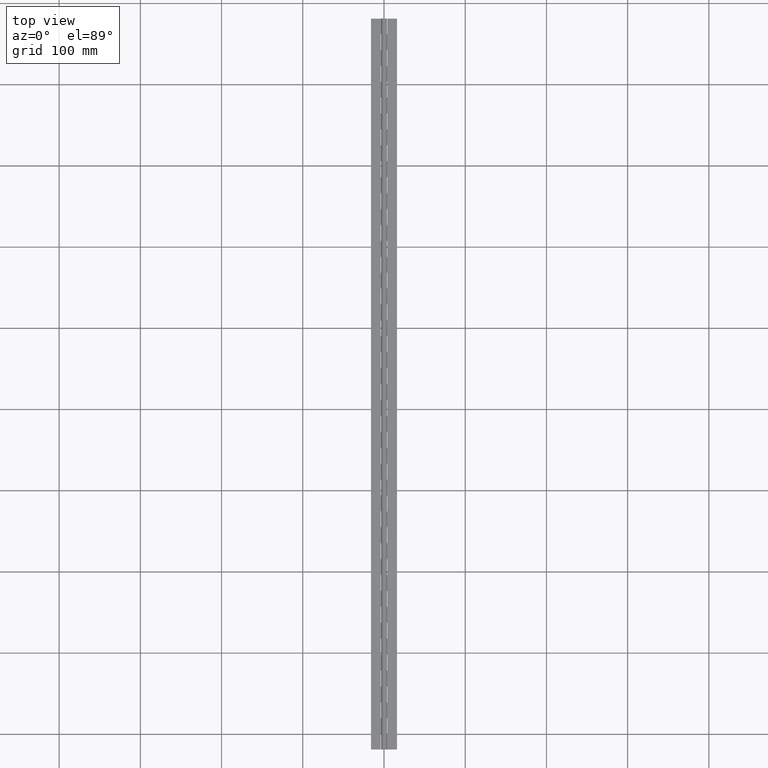
[diagram: clean part render]
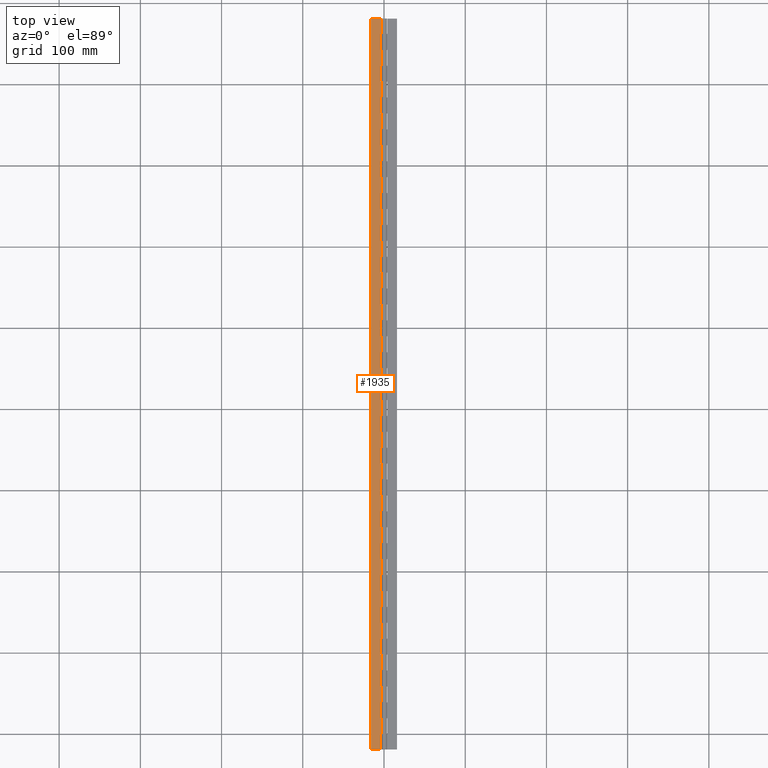
[diagram: same view with one face highlighted and labeled with its STEP entity id]
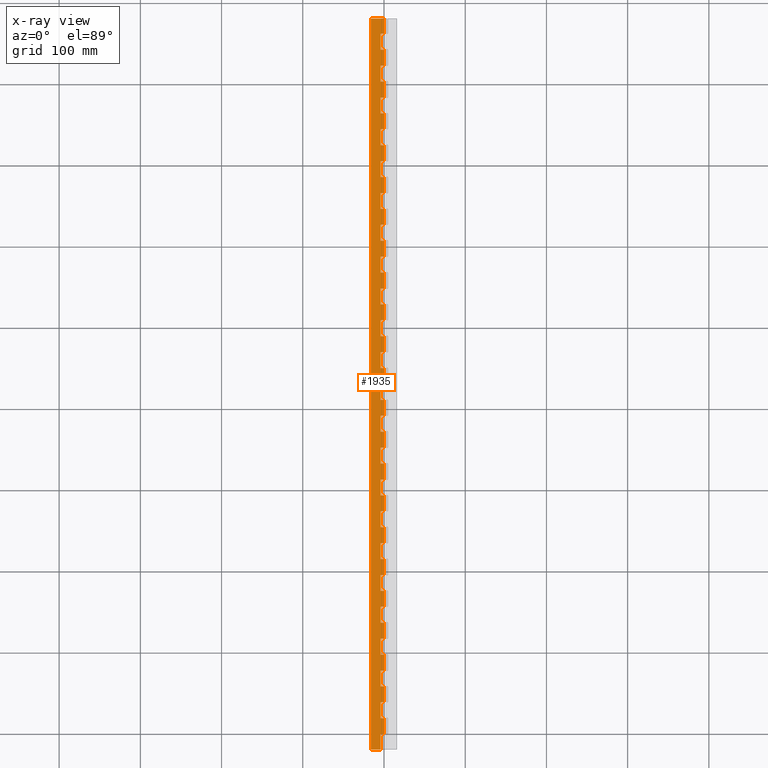
[diagram: x-ray of the same camera — body ghosted, the highlighted face saturated]
A machine part, top view. The second image highlights one B-rep face of the part: STEP entity #1935.
The next image is the same camera in x-ray: the body ghosted, the highlighted face saturated — about 0% of this face is hidden behind the body in this view.
In plain terms, the highlighted planar face has unit normal (-0, 0, -1).
Its self-contained STEP definition (entity closure, byte-faithful):
#7 = EDGE_CURVE ( 'NONE', #6120, #713, #5329, .T. ) ;
#18 = VERTEX_POINT ( 'NONE', #6525 ) ;
#31 = ORIENTED_EDGE ( 'NONE', *, *, #5007, .T. ) ;
#49 = CARTESIAN_POINT ( 'NONE',  ( 2.143125705451388300E-016, 764.4000000000000900, -1.750000000000002400 ) ) ;
#51 = CARTESIAN_POINT ( 'NONE',  ( -3.999999824594461900, 666.4000000000000900, -1.750000000000002200 ) ) ;
#61 = CARTESIAN_POINT ( 'NONE',  ( 2.143125705451388300E-016, 568.3999999999999800, -1.750000000000002400 ) ) ;
#77 = DIRECTION ( 'NONE',  ( -1.327594496921025700E-016, 1.000000000000000000, 1.619303460211448100E-032 ) ) ;
#88 = PLANE ( 'NONE',  #2541 ) ;
#101 = VECTOR ( 'NONE', #1950, 1000.000000000000000 ) ;
#131 = VECTOR ( 'NONE', #4886, 1000.000000000000000 ) ;
#151 = ORIENTED_EDGE ( 'NONE', *, *, #9002, .T. ) ;
#157 = ORIENTED_EDGE ( 'NONE', *, *, #5306, .T. ) ;
#160 = EDGE_CURVE ( 'NONE', #6957, #18, #6175, .T. ) ;
#168 = CARTESIAN_POINT ( 'NONE',  ( -3.999999824594461900, 784.0000000000001100, -1.750000000000002200 ) ) ;
#171 = ORIENTED_EDGE ( 'NONE', *, *, #3085, .T. ) ;
#176 = ORIENTED_EDGE ( 'NONE', *, *, #365, .T. ) ;
#179 = ORIENTED_EDGE ( 'NONE', *, *, #2925, .F. ) ;
#217 = CARTESIAN_POINT ( 'NONE',  ( -15.99999982459446300, -18.80000000000000100, -1.750000000000000400 ) ) ;
#224 = VECTOR ( 'NONE', #3035, 1000.000000000000000 ) ;
#229 = EDGE_CURVE ( 'NONE', #7678, #3100, #7892, .T. ) ;
#230 = DIRECTION ( 'NONE',  ( -1.000000000000000000, 0.0000000000000000000, 1.219727457417876900E-016 ) ) ;
#267 = ORIENTED_EDGE ( 'NONE', *, *, #4996, .T. ) ;
#273 = LINE ( 'NONE', #3621, #6073 ) ;
#274 = LINE ( 'NONE', #2730, #6074 ) ;
#277 = EDGE_CURVE ( 'NONE', #5468, #1679, #8947, .T. ) ;
#294 = ORIENTED_EDGE ( 'NONE', *, *, #2354, .T. ) ;
#300 = EDGE_CURVE ( 'NONE', #1960, #5019, #8698, .T. ) ;
#328 = DIRECTION ( 'NONE',  ( -1.327594496921025700E-016, 1.000000000000000000, 1.619303460211448100E-032 ) ) ;
#331 = DIRECTION ( 'NONE',  ( -0.0000000000000000000, -1.000000000000000000, -0.0000000000000000000 ) ) ;
#360 = CARTESIAN_POINT ( 'NONE',  ( 2.143125705451388300E-016, 862.4000000000002000, -1.750000000000002400 ) ) ;
#361 = VERTEX_POINT ( 'NONE', #6069 ) ;
#365 = EDGE_CURVE ( 'NONE', #7749, #7124, #6280, .T. ) ;
#384 = VERTEX_POINT ( 'NONE', #759 ) ;
#402 = ORIENTED_EDGE ( 'NONE', *, *, #3460, .F. ) ;
#403 = EDGE_CURVE ( 'NONE', #7936, #2670, #2500, .T. ) ;
#406 = EDGE_CURVE ( 'NONE', #361, #9312, #945, .T. ) ;
#414 = EDGE_CURVE ( 'NONE', #7787, #4867, #2016, .T. ) ;
#419 = ORIENTED_EDGE ( 'NONE', *, *, #4612, .F. ) ;
#421 = CARTESIAN_POINT ( 'NONE',  ( 2.143132568272414800E-016, 862.3999999999999800, -1.750000546904256100 ) ) ;
#429 = CARTESIAN_POINT ( 'NONE',  ( -3.999999824594571200, 862.3999999999999800, -1.750000000000002000 ) ) ;
#434 = EDGE_CURVE ( 'NONE', #6107, #5777, #1774, .T. ) ;
#436 = LINE ( 'NONE', #1856, #6251 ) ;
#475 = VECTOR ( 'NONE', #6023, 1000.000000000000000 ) ;
#481 = CARTESIAN_POINT ( 'NONE',  ( -3.999999824594461900, 744.8000000000001800, -1.750000000000002200 ) ) ;
#493 = ORIENTED_EDGE ( 'NONE', *, *, #1972, .T. ) ;
#501 = LINE ( 'NONE', #429, #8027 ) ;
#527 = CARTESIAN_POINT ( 'NONE',  ( -3.999999824594461900, 627.2000000000000500, -1.750000000000002200 ) ) ;
#531 = DIRECTION ( 'NONE',  ( 1.000000000000000000, 0.0000000000000000000, -1.219727457417876900E-016 ) ) ;
#534 = VERTEX_POINT ( 'NONE', #1486 ) ;
#573 = CARTESIAN_POINT ( 'NONE',  ( -3.999999824594461900, 117.6000000000000100, -1.750000000000002200 ) ) ;
#594 = VERTEX_POINT ( 'NONE', #4600 ) ;
#611 = DIRECTION ( 'NONE',  ( -1.000000000000000000, 0.0000000000000000000, 1.219727457417876900E-016 ) ) ;
#621 = ORIENTED_EDGE ( 'NONE', *, *, #6188, .T. ) ;
#633 = EDGE_CURVE ( 'NONE', #384, #8635, #7878, .T. ) ;
#634 = VERTEX_POINT ( 'NONE', #6658 ) ;
#653 = CARTESIAN_POINT ( 'NONE',  ( 2.143125705451388300E-016, 215.6000000000000200, -1.750000000000002400 ) ) ;
#655 = VERTEX_POINT ( 'NONE', #9660 ) ;
#671 = VERTEX_POINT ( 'NONE', #8178 ) ;
#688 = EDGE_CURVE ( 'NONE', #1576, #9653, #1315, .T. ) ;
#695 = ORIENTED_EDGE ( 'NONE', *, *, #3256, .T. ) ;
#713 = VERTEX_POINT ( 'NONE', #4407 ) ;
#717 = ORIENTED_EDGE ( 'NONE', *, *, #3113, .F. ) ;
#748 = CARTESIAN_POINT ( 'NONE',  ( 2.143132568272414800E-016, 862.3999999999999800, -1.750000546904256100 ) ) ;
#751 = CARTESIAN_POINT ( 'NONE',  ( -3.999999824594459200, 725.2000000000000500, -1.750000000000002200 ) ) ;
#759 = CARTESIAN_POINT ( 'NONE',  ( -3.999999824594461900, 862.4000000000002000, -1.750000000000002200 ) ) ;
#766 = VERTEX_POINT ( 'NONE', #573 ) ;
#770 = CARTESIAN_POINT ( 'NONE',  ( 0.0000000000000000000, 705.6000000000001400, -1.750000000000002400 ) ) ;
#784 = CARTESIAN_POINT ( 'NONE',  ( -3.999999824594524500, 862.3999999999999800, -1.750000000000002000 ) ) ;
#818 = DIRECTION ( 'NONE',  ( -1.000000000000000000, 0.0000000000000000000, 1.219727457417876900E-016 ) ) ;
#824 = VERTEX_POINT ( 'NONE', #1241 ) ;
#846 = DIRECTION ( 'NONE',  ( 1.000000000000000000, 0.0000000000000000000, -1.219727457417876900E-016 ) ) ;
#866 = VERTEX_POINT ( 'NONE', #1971 ) ;
#881 = CARTESIAN_POINT ( 'NONE',  ( 2.143132568272414800E-016, 862.3999999999999800, -1.750000546904256100 ) ) ;
#885 = DIRECTION ( 'NONE',  ( -1.000000000000000000, 0.0000000000000000000, 1.219727457417876900E-016 ) ) ;
#890 = DIRECTION ( 'NONE',  ( -0.0000000000000000000, -1.000000000000000000, -0.0000000000000000000 ) ) ;
#898 = ORIENTED_EDGE ( 'NONE', *, *, #1256, .T. ) ;
#905 = CARTESIAN_POINT ( 'NONE',  ( 2.143132568272414800E-016, 862.3999999999999800, -1.750000546904256100 ) ) ;
#913 = VERTEX_POINT ( 'NONE', #9414 ) ;
#920 = CARTESIAN_POINT ( 'NONE',  ( -3.999999824594459200, 98.00000000000001400, -1.750000000000002200 ) ) ;
#922 = LINE ( 'NONE', #2974, #2700 ) ;
#929 = VECTOR ( 'NONE', #7711, 1000.000000000000000 ) ;
#945 = LINE ( 'NONE', #7640, #5795 ) ;
#964 = VECTOR ( 'NONE', #846, 1000.000000000000000 ) ;
#1014 = DIRECTION ( 'NONE',  ( -1.000000000000000000, 0.0000000000000000000, 1.219727457417876900E-016 ) ) ;
#1031 = CARTESIAN_POINT ( 'NONE',  ( -3.999999824594461900, 392.0000000000000600, -1.750000000000002200 ) ) ;
#1079 = LINE ( 'NONE', #8256, #9083 ) ;
#1090 = LINE ( 'NONE', #7023, #8851 ) ;
#1096 = EDGE_CURVE ( 'NONE', #1994, #7130, #7545, .T. ) ;
#1110 = VERTEX_POINT ( 'NONE', #5521 ) ;
#1141 = DIRECTION ( 'NONE',  ( -1.000000000000000000, 0.0000000000000000000, 1.219727457417876900E-016 ) ) ;
#1145 = EDGE_CURVE ( 'NONE', #9208, #7109, #1544, .T. ) ;
#1192 = VERTEX_POINT ( 'NONE', #9717 ) ;
#1206 = VECTOR ( 'NONE', #5137, 1000.000000000000000 ) ;
#1209 = DIRECTION ( 'NONE',  ( -1.327594496921025700E-016, 1.000000000000000000, 1.619303460211448100E-032 ) ) ;
#1216 = VERTEX_POINT ( 'NONE', #61 ) ;
#1218 = CARTESIAN_POINT ( 'NONE',  ( 2.143125705451388300E-016, 490.0000000000000600, -1.750000000000002400 ) ) ;
#1220 = CARTESIAN_POINT ( 'NONE',  ( 2.143125705451388300E-016, 137.1999999999999900, -1.750000000000002400 ) ) ;
#1235 = DIRECTION ( 'NONE',  ( -1.000000000000000000, 0.0000000000000000000, 1.219727457417876900E-016 ) ) ;
#1241 = CARTESIAN_POINT ( 'NONE',  ( 2.143125705451388300E-016, 627.2000000000000500, -1.750000000000002400 ) ) ;
#1242 = ORIENTED_EDGE ( 'NONE', *, *, #4751, .T. ) ;
#1256 = EDGE_CURVE ( 'NONE', #3442, #671, #4138, .T. ) ;
#1261 = DIRECTION ( 'NONE',  ( 1.000000000000000000, 0.0000000000000000000, -1.219727457417876900E-016 ) ) ;
#1268 = LINE ( 'NONE', #5379, #3522 ) ;
#1269 = LINE ( 'NONE', #3017, #9025 ) ;
#1291 = VERTEX_POINT ( 'NONE', #8109 ) ;
#1295 = VECTOR ( 'NONE', #7378, 1000.000000000000000 ) ;
#1302 = ORIENTED_EDGE ( 'NONE', *, *, #2890, .T. ) ;
#1304 = VECTOR ( 'NONE', #8392, 1000.000000000000000 ) ;
#1315 = LINE ( 'NONE', #5250, #3095 ) ;
#1325 = VERTEX_POINT ( 'NONE', #2473 ) ;
#1339 = VERTEX_POINT ( 'NONE', #3244 ) ;
#1341 = LINE ( 'NONE', #3249, #9093 ) ;
#1347 = ORIENTED_EDGE ( 'NONE', *, *, #414, .T. ) ;
#1353 = EDGE_CURVE ( 'NONE', #3452, #6353, #1409, .T. ) ;
#1361 = CARTESIAN_POINT ( 'NONE',  ( 0.0000000000000000000, 333.2000000000000500, -1.750000000000002400 ) ) ;
#1376 = DIRECTION ( 'NONE',  ( 1.000000000000000000, 0.0000000000000000000, -1.219727457417876900E-016 ) ) ;
#1386 = EDGE_CURVE ( 'NONE', #1291, #8044, #6958, .T. ) ;
#1387 = LINE ( 'NONE', #4710, #7154 ) ;
#1391 = LINE ( 'NONE', #1770, #7162 ) ;
#1409 = LINE ( 'NONE', #7527, #5188 ) ;
#1416 = CARTESIAN_POINT ( 'NONE',  ( 0.0000000000000000000, 862.4000000000002000, -1.750000000000002400 ) ) ;
#1417 = VECTOR ( 'NONE', #331, 1000.000000000000000 ) ;
#1435 = ORIENTED_EDGE ( 'NONE', *, *, #1353, .T. ) ;
#1471 = ORIENTED_EDGE ( 'NONE', *, *, #6805, .T. ) ;
#1486 = CARTESIAN_POINT ( 'NONE',  ( 2.143125705451388300E-016, 705.6000000000001400, -1.750000000000002400 ) ) ;
#1492 = CARTESIAN_POINT ( 'NONE',  ( 2.143132568272414800E-016, 862.3999999999999800, -1.750000546904256100 ) ) ;
#1497 = CARTESIAN_POINT ( 'NONE',  ( -3.999999824594461900, 39.20000000000000300, -1.750000000000002200 ) ) ;
#1503 = CARTESIAN_POINT ( 'NONE',  ( 0.0000000000000000000, 431.2000000000001000, -1.750000000000002400 ) ) ;
#1524 = EDGE_CURVE ( 'NONE', #634, #18, #9278, .T. ) ;
#1529 = DIRECTION ( 'NONE',  ( 1.000000000000000000, 0.0000000000000000000, -1.219727457417876900E-016 ) ) ;
#1538 = DIRECTION ( 'NONE',  ( -1.327594496921025700E-016, 1.000000000000000000, 1.619303460211448100E-032 ) ) ;
#1544 = LINE ( 'NONE', #3073, #6609 ) ;
#1576 = VERTEX_POINT ( 'NONE', #7039 ) ;
#1591 = CARTESIAN_POINT ( 'NONE',  ( -3.999999824594459200, 646.8000000000000700, -1.750000000000002200 ) ) ;
#1658 = LINE ( 'NONE', #5415, #9168 ) ;
#1660 = CARTESIAN_POINT ( 'NONE',  ( -3.999999824594461900, 509.6000000000000800, -1.750000000000002200 ) ) ;
#1671 = LINE ( 'NONE', #1847, #1417 ) ;
#1674 = VERTEX_POINT ( 'NONE', #5517 ) ;
#1677 = VECTOR ( 'NONE', #3124, 1000.000000000000000 ) ;
#1679 = VERTEX_POINT ( 'NONE', #217 ) ;
#1682 = CARTESIAN_POINT ( 'NONE',  ( -3.999999824594459200, 490.0000000000000600, -1.750000000000002200 ) ) ;
#1700 = LINE ( 'NONE', #7949, #7458 ) ;
#1701 = LINE ( 'NONE', #4066, #3708 ) ;
#1704 = CARTESIAN_POINT ( 'NONE',  ( -3.999999824594461900, 235.2000000000000500, -1.750000000000002200 ) ) ;
#1707 = CARTESIAN_POINT ( 'NONE',  ( 0.0000000000000000000, 627.2000000000000500, -1.750000000000002400 ) ) ;
#1714 = DIRECTION ( 'NONE',  ( -0.0000000000000000000, -1.000000000000000000, -0.0000000000000000000 ) ) ;
#1770 = CARTESIAN_POINT ( 'NONE',  ( 2.143132568272414800E-016, 862.3999999999999800, -1.750000546904256100 ) ) ;
#1774 = LINE ( 'NONE', #8764, #9286 ) ;
#1788 = VERTEX_POINT ( 'NONE', #9609 ) ;
#1799 = LINE ( 'NONE', #8207, #7103 ) ;
#1808 = DIRECTION ( 'NONE',  ( -0.0000000000000000000, -1.000000000000000000, -0.0000000000000000000 ) ) ;
#1828 = EDGE_CURVE ( 'NONE', #2813, #6909, #922, .T. ) ;
#1847 = CARTESIAN_POINT ( 'NONE',  ( 2.143132568272414800E-016, 862.3999999999999800, -1.750000546904256100 ) ) ;
#1856 = CARTESIAN_POINT ( 'NONE',  ( 0.0000000000000000000, 568.3999999999999800, -1.750000000000002400 ) ) ;
#1868 = VECTOR ( 'NONE', #77, 1000.000000000000000 ) ;
#1881 = DIRECTION ( 'NONE',  ( 1.000000000000000000, 0.0000000000000000000, -1.219727457417876900E-016 ) ) ;
#1893 = VERTEX_POINT ( 'NONE', #2216 ) ;
#1905 = CARTESIAN_POINT ( 'NONE',  ( 2.143132568272414800E-016, 862.3999999999999800, -1.750000546904256100 ) ) ;
#1935 = ADVANCED_FACE ( 'NONE', ( #7757 ), #88, .F. ) ;
#1950 = DIRECTION ( 'NONE',  ( -0.0000000000000000000, -1.000000000000000000, -0.0000000000000000000 ) ) ;
#1960 = VERTEX_POINT ( 'NONE', #6942 ) ;
#1971 = CARTESIAN_POINT ( 'NONE',  ( 2.143125705451388300E-016, 666.4000000000000900, -1.750000000000002400 ) ) ;
#1972 = EDGE_CURVE ( 'NONE', #6487, #4603, #7519, .T. ) ;
#1978 = DIRECTION ( 'NONE',  ( -0.0000000000000000000, -1.000000000000000000, -0.0000000000000000000 ) ) ;
#1994 = VERTEX_POINT ( 'NONE', #3170 ) ;
#2016 = LINE ( 'NONE', #8263, #7776 ) ;
#2036 = ORIENTED_EDGE ( 'NONE', *, *, #7, .T. ) ;
#2060 = ORIENTED_EDGE ( 'NONE', *, *, #2076, .T. ) ;
#2070 = DIRECTION ( 'NONE',  ( 1.000000000000000000, 0.0000000000000000000, -1.219727457417876900E-016 ) ) ;
#2076 = EDGE_CURVE ( 'NONE', #4867, #2650, #5592, .T. ) ;
#2090 = VERTEX_POINT ( 'NONE', #8181 ) ;
#2129 = DIRECTION ( 'NONE',  ( -1.000000000000000000, 0.0000000000000000000, 1.219727457417876900E-016 ) ) ;
#2130 = EDGE_CURVE ( 'NONE', #4606, #1893, #1799, .T. ) ;
#2134 = ORIENTED_EDGE ( 'NONE', *, *, #8734, .T. ) ;
#2139 = EDGE_CURVE ( 'NONE', #7500, #3553, #1079, .T. ) ;
#2161 = CARTESIAN_POINT ( 'NONE',  ( -3.999999824594493000, 862.3999999999999800, -1.750000000000002000 ) ) ;
#2169 = ORIENTED_EDGE ( 'NONE', *, *, #4130, .T. ) ;
#2178 = CARTESIAN_POINT ( 'NONE',  ( 0.0000000000000000000, 764.4000000000000900, -1.750000000000002400 ) ) ;
#2196 = DIRECTION ( 'NONE',  ( 1.000000000000000000, 0.0000000000000000000, -1.219727457417876900E-016 ) ) ;
#2201 = VERTEX_POINT ( 'NONE', #5357 ) ;
#2216 = CARTESIAN_POINT ( 'NONE',  ( -3.999999824594461900, 352.8000000000000700, -1.750000000000002200 ) ) ;
#2217 = DIRECTION ( 'NONE',  ( -0.9999999999999994400, -0.0000000000000000000, 3.418151635014737200E-008 ) ) ;
#2262 = VERTEX_POINT ( 'NONE', #1660 ) ;
#2264 = VECTOR ( 'NONE', #8111, 1000.000000000000000 ) ;
#2282 = CARTESIAN_POINT ( 'NONE',  ( -3.999999824594540100, 862.3999999999999800, -1.750000000000002000 ) ) ;
#2313 = EDGE_CURVE ( 'NONE', #634, #9525, #5603, .T. ) ;
#2319 = DIRECTION ( 'NONE',  ( 1.000000000000000000, 0.0000000000000000000, -1.219727457417876900E-016 ) ) ;
#2327 = EDGE_CURVE ( 'NONE', #2670, #1110, #1341, .T. ) ;
#2350 = CARTESIAN_POINT ( 'NONE',  ( -3.999999824594498300, 862.3999999999999800, -1.750000000000002000 ) ) ;
#2353 = VERTEX_POINT ( 'NONE', #9260 ) ;
#2354 = EDGE_CURVE ( 'NONE', #1339, #5598, #1090, .T. ) ;
#2359 = VECTOR ( 'NONE', #7300, 1000.000000000000000 ) ;
#2379 = VECTOR ( 'NONE', #8229, 1000.000000000000000 ) ;
#2395 = CARTESIAN_POINT ( 'NONE',  ( 2.143125705451388300E-016, 607.6000000000000200, -1.750000000000002400 ) ) ;
#2419 = DIRECTION ( 'NONE',  ( -1.327594496921025700E-016, 1.000000000000000000, 1.619303460211448100E-032 ) ) ;
#2464 = LINE ( 'NONE', #2161, #8197 ) ;
#2473 = CARTESIAN_POINT ( 'NONE',  ( -3.999999824594463700, 0.0000000000000000000, -1.750000000000002200 ) ) ;
#2498 = DIRECTION ( 'NONE',  ( -0.0000000000000000000, -1.000000000000000000, -0.0000000000000000000 ) ) ;
#2500 = LINE ( 'NONE', #7025, #4026 ) ;
#2506 = LINE ( 'NONE', #1492, #475 ) ;
#2524 = EDGE_CURVE ( 'NONE', #1994, #1674, #1700, .T. ) ;
#2532 = DIRECTION ( 'NONE',  ( -0.0000000000000000000, -1.000000000000000000, -0.0000000000000000000 ) ) ;
#2536 = CARTESIAN_POINT ( 'NONE',  ( 2.143125705451388300E-016, 686.0000000000000000, -1.750000000000002400 ) ) ;
#2541 = AXIS2_PLACEMENT_3D ( 'NONE', #4594, #3296, #4635 ) ;
#2562 = ORIENTED_EDGE ( 'NONE', *, *, #229, .T. ) ;
#2579 = VECTOR ( 'NONE', #3117, 1000.000000000000100 ) ;
#2591 = LINE ( 'NONE', #8070, #8092 ) ;
#2602 = CARTESIAN_POINT ( 'NONE',  ( -3.999999824594461900, 274.4000000000000300, -1.750000000000002200 ) ) ;
#2610 = ORIENTED_EDGE ( 'NONE', *, *, #2139, .F. ) ;
#2615 = DIRECTION ( 'NONE',  ( -1.000000000000000000, 0.0000000000000000000, 1.219727457417876900E-016 ) ) ;
#2624 = VERTEX_POINT ( 'NONE', #5071 ) ;
#2629 = LINE ( 'NONE', #3713, #5702 ) ;
#2630 = LINE ( 'NONE', #9682, #6408 ) ;
#2649 = CARTESIAN_POINT ( 'NONE',  ( 0.0000000000000000000, 666.4000000000000900, -1.750000000000002400 ) ) ;
#2650 = VERTEX_POINT ( 'NONE', #7366 ) ;
#2654 = EDGE_CURVE ( 'NONE', #4050, #7109, #6521, .T. ) ;
#2667 = EDGE_CURVE ( 'NONE', #1788, #2727, #273, .T. ) ;
#2670 = VERTEX_POINT ( 'NONE', #4429 ) ;
#2673 = ORIENTED_EDGE ( 'NONE', *, *, #434, .T. ) ;
#2700 = VECTOR ( 'NONE', #5518, 1000.000000000000000 ) ;
#2718 = VECTOR ( 'NONE', #1141, 1000.000000000000000 ) ;
#2723 = VECTOR ( 'NONE', #7055, 1000.000000000000000 ) ;
#2727 = VERTEX_POINT ( 'NONE', #8703 ) ;
#2730 = CARTESIAN_POINT ( 'NONE',  ( 0.0000000000000000000, 137.1999999999999900, -1.750000000000002400 ) ) ;
#2735 = VERTEX_POINT ( 'NONE', #1220 ) ;
#2740 = LINE ( 'NONE', #6152, #964 ) ;
#2745 = CARTESIAN_POINT ( 'NONE',  ( 2.143132568272414800E-016, 862.3999999999999800, -1.750000546904256100 ) ) ;
#2758 = CARTESIAN_POINT ( 'NONE',  ( 0.0000000000000000000, 470.4000000000000900, -1.750000000000002400 ) ) ;
#2767 = CARTESIAN_POINT ( 'NONE',  ( 2.143125705451388300E-016, 333.2000000000000500, -1.750000000000002400 ) ) ;
#2813 = VERTEX_POINT ( 'NONE', #5079 ) ;
#2823 = CARTESIAN_POINT ( 'NONE',  ( -3.999999824594472100, 862.3999999999999800, -1.750000000000002000 ) ) ;
#2858 = ORIENTED_EDGE ( 'NONE', *, *, #6080, .T. ) ;
#2863 = VERTEX_POINT ( 'NONE', #5878 ) ;
#2873 = VERTEX_POINT ( 'NONE', #8868 ) ;
#2876 = CARTESIAN_POINT ( 'NONE',  ( 2.143132568272414800E-016, 862.3999999999999800, -1.750000546904256100 ) ) ;
#2890 = EDGE_CURVE ( 'NONE', #3100, #8848, #6186, .T. ) ;
#2892 = VERTEX_POINT ( 'NONE', #7404 ) ;
#2897 = EDGE_CURVE ( 'NONE', #2735, #2090, #4165, .T. ) ;
#2905 = CARTESIAN_POINT ( 'NONE',  ( 0.0000000000000000000, 784.0000000000001100, -1.750000000000002400 ) ) ;
#2915 = ORIENTED_EDGE ( 'NONE', *, *, #9343, .F. ) ;
#2920 = DIRECTION ( 'NONE',  ( -1.000000000000000000, 0.0000000000000000000, 1.219727457417876900E-016 ) ) ;
#2925 = EDGE_CURVE ( 'NONE', #9463, #1679, #2629, .T. ) ;
#2939 = DIRECTION ( 'NONE',  ( 1.000000000000000000, 0.0000000000000000000, -1.219727457417876900E-016 ) ) ;
#2948 = VECTOR ( 'NONE', #1529, 1000.000000000000000 ) ;
#2953 = DIRECTION ( 'NONE',  ( -1.000000000000000000, 0.0000000000000000000, 1.219727457417876900E-016 ) ) ;
#2963 = LINE ( 'NONE', #2649, #6729 ) ;
#2974 = CARTESIAN_POINT ( 'NONE',  ( -3.999999824594565800, 862.3999999999999800, -1.750000000000002000 ) ) ;
#2981 = DIRECTION ( 'NONE',  ( -0.0000000000000000000, -1.000000000000000000, -0.0000000000000000000 ) ) ;
#2982 = VERTEX_POINT ( 'NONE', #751 ) ;
#2985 = ORIENTED_EDGE ( 'NONE', *, *, #160, .T. ) ;
#3017 = CARTESIAN_POINT ( 'NONE',  ( -3.999999824594555600, 862.3999999999999800, -1.750000000000002000 ) ) ;
#3022 = VERTEX_POINT ( 'NONE', #3867 ) ;
#3033 = EDGE_CURVE ( 'NONE', #7124, #3022, #2740, .T. ) ;
#3035 = DIRECTION ( 'NONE',  ( -1.327594496921025700E-016, 1.000000000000000000, 1.619303460211448100E-032 ) ) ;
#3066 = LINE ( 'NONE', #6490, #4836 ) ;
#3073 = CARTESIAN_POINT ( 'NONE',  ( 2.143132568272414800E-016, 862.3999999999999800, -1.750000546904256100 ) ) ;
#3084 = VECTOR ( 'NONE', #4498, 1000.000000000000000 ) ;
#3085 = EDGE_CURVE ( 'NONE', #9312, #766, #4530, .T. ) ;
#3087 = LINE ( 'NONE', #6200, #9061 ) ;
#3094 = CARTESIAN_POINT ( 'NONE',  ( -15.99999982459446300, 881.1999999999999300, -1.750000000000000400 ) ) ;
#3095 = VECTOR ( 'NONE', #2319, 1000.000000000000000 ) ;
#3100 = VERTEX_POINT ( 'NONE', #168 ) ;
#3109 = CARTESIAN_POINT ( 'NONE',  ( -3.999999824594461900, 548.8000000000000700, -1.750000000000002200 ) ) ;
#3113 = EDGE_CURVE ( 'NONE', #1291, #2624, #8016, .T. ) ;
#3117 = DIRECTION ( 'NONE',  ( 0.9999999999999994400, 0.0000000000000000000, -3.418151635014737200E-008 ) ) ;
#3121 = CARTESIAN_POINT ( 'NONE',  ( 2.143125705451388300E-016, 842.8000000000000700, -1.750000000000002400 ) ) ;
#3124 = DIRECTION ( 'NONE',  ( -1.327594496921025700E-016, 1.000000000000000000, 1.619303460211448100E-032 ) ) ;
#3170 = CARTESIAN_POINT ( 'NONE',  ( 0.0000000000000000000, 19.59999999999995200, -1.750000546904256100 ) ) ;
#3177 = DIRECTION ( 'NONE',  ( -0.0000000000000000000, -1.000000000000000000, -0.0000000000000000000 ) ) ;
#3183 = VECTOR ( 'NONE', #531, 1000.000000000000000 ) ;
#3206 = LINE ( 'NONE', #6974, #7656 ) ;
#3221 = CARTESIAN_POINT ( 'NONE',  ( 0.0000000000000000000, 294.0000000000000600, -1.750000000000002400 ) ) ;
#3233 = VERTEX_POINT ( 'NONE', #4852 ) ;
#3235 = ORIENTED_EDGE ( 'NONE', *, *, #5402, .T. ) ;
#3244 = CARTESIAN_POINT ( 'NONE',  ( 2.143125705451388300E-016, 176.4000000000000100, -1.750000000000002400 ) ) ;
#3249 = CARTESIAN_POINT ( 'NONE',  ( -3.999999824594482800, 862.3999999999999800, -1.750000000000002000 ) ) ;
#3256 = EDGE_CURVE ( 'NONE', #6036, #3712, #8588, .T. ) ;
#3258 = ORIENTED_EDGE ( 'NONE', *, *, #2897, .F. ) ;
#3263 = DIRECTION ( 'NONE',  ( -1.327594496921025700E-016, 1.000000000000000000, 1.619303460211448100E-032 ) ) ;
#3296 = DIRECTION ( 'NONE',  ( -1.219727457417876900E-016, 0.0000000000000000000, -1.000000000000000000 ) ) ;
#3297 = VECTOR ( 'NONE', #8975, 1000.000000000000000 ) ;
#3313 = CARTESIAN_POINT ( 'NONE',  ( -3.999999824594534700, 862.3999999999999800, -1.750000000000002000 ) ) ;
#3316 = LINE ( 'NONE', #7407, #1295 ) ;
#3325 = LINE ( 'NONE', #748, #3084 ) ;
#3326 = LINE ( 'NONE', #7632, #1304 ) ;
#3332 = VECTOR ( 'NONE', #6337, 1000.000000000000000 ) ;
#3346 = ORIENTED_EDGE ( 'NONE', *, *, #6135, .T. ) ;
#3381 = VERTEX_POINT ( 'NONE', #2767 ) ;
#3430 = CARTESIAN_POINT ( 'NONE',  ( -3.999999824594459200, 568.3999999999999800, -1.750000000000002200 ) ) ;
#3442 = VERTEX_POINT ( 'NONE', #7216 ) ;
#3452 = VERTEX_POINT ( 'NONE', #1218 ) ;
#3460 = EDGE_CURVE ( 'NONE', #5202, #2201, #8951, .T. ) ;
#3479 = ORIENTED_EDGE ( 'NONE', *, *, #5237, .T. ) ;
#3491 = VERTEX_POINT ( 'NONE', #527 ) ;
#3522 = VECTOR ( 'NONE', #6147, 1000.000000000000000 ) ;
#3526 = EDGE_CURVE ( 'NONE', #6036, #824, #4265, .T. ) ;
#3553 = VERTEX_POINT ( 'NONE', #7401 ) ;
#3578 = VECTOR ( 'NONE', #2196, 1000.000000000000000 ) ;
#3584 = LINE ( 'NONE', #7332, #5596 ) ;
#3594 = ORIENTED_EDGE ( 'NONE', *, *, #8437, .F. ) ;
#3598 = DIRECTION ( 'NONE',  ( -1.327594496921025700E-016, 1.000000000000000000, 1.619303460211448100E-032 ) ) ;
#3621 = CARTESIAN_POINT ( 'NONE',  ( 0.0000000000000000000, 450.8000000000000700, -1.750000000000002400 ) ) ;
#3642 = LINE ( 'NONE', #4307, #3183 ) ;
#3653 = VECTOR ( 'NONE', #9552, 1000.000000000000000 ) ;
#3658 = DIRECTION ( 'NONE',  ( -1.000000000000000000, 0.0000000000000000000, 1.219727457417876900E-016 ) ) ;
#3661 = VECTOR ( 'NONE', #2939, 1000.000000000000000 ) ;
#3667 = EDGE_CURVE ( 'NONE', #1216, #2650, #3325, .T. ) ;
#3708 = VECTOR ( 'NONE', #9284, 1000.000000000000000 ) ;
#3712 = VERTEX_POINT ( 'NONE', #1591 ) ;
#3713 = CARTESIAN_POINT ( 'NONE',  ( 2.143132568272414800E-016, -18.80000000000000100, -1.750000546904256100 ) ) ;
#3714 = CARTESIAN_POINT ( 'NONE',  ( 2.143132568272414800E-016, 862.3999999999999800, -1.750000546904256100 ) ) ;
#3732 = CARTESIAN_POINT ( 'NONE',  ( 0.0000000000000000000, 196.0000000000000600, -1.750000000000002400 ) ) ;
#3759 = VECTOR ( 'NONE', #2981, 1000.000000000000000 ) ;
#3767 = DIRECTION ( 'NONE',  ( -0.0000000000000000000, -1.000000000000000000, -0.0000000000000000000 ) ) ;
#3773 = LINE ( 'NONE', #6228, #7762 ) ;
#3783 = VECTOR ( 'NONE', #1209, 1000.000000000000000 ) ;
#3819 = ORIENTED_EDGE ( 'NONE', *, *, #1524, .F. ) ;
#3846 = CARTESIAN_POINT ( 'NONE',  ( -15.99999982459446300, 881.1999999999999300, -1.750000000000000400 ) ) ;
#3855 = CARTESIAN_POINT ( 'NONE',  ( -3.999999824594545000, 862.3999999999999800, -1.750000000000002000 ) ) ;
#3867 = CARTESIAN_POINT ( 'NONE',  ( 2.143125705451388300E-016, 313.5999999999999700, -1.750000000000002400 ) ) ;
#3901 = VECTOR ( 'NONE', #2129, 1000.000000000000000 ) ;
#3905 = VECTOR ( 'NONE', #8315, 1000.000000000000000 ) ;
#3914 = ORIENTED_EDGE ( 'NONE', *, *, #4997, .T. ) ;
#3953 = LINE ( 'NONE', #4793, #5714 ) ;
#3987 = CARTESIAN_POINT ( 'NONE',  ( 2.143132568272414800E-016, 862.3999999999999800, -1.750000546904256100 ) ) ;
#4003 = LINE ( 'NONE', #5054, #5773 ) ;
#4009 = CARTESIAN_POINT ( 'NONE',  ( 2.143132568272414800E-016, 862.3999999999999800, -1.750000546904256100 ) ) ;
#4016 = EDGE_CURVE ( 'NONE', #6353, #2262, #6037, .T. ) ;
#4026 = VECTOR ( 'NONE', #2953, 1000.000000000000000 ) ;
#4045 = VECTOR ( 'NONE', #5494, 1000.000000000000000 ) ;
#4050 = VERTEX_POINT ( 'NONE', #481 ) ;
#4052 = ORIENTED_EDGE ( 'NONE', *, *, #6110, .T. ) ;
#4066 = CARTESIAN_POINT ( 'NONE',  ( -3.999999824594550300, 862.3999999999999800, -1.750000000000002000 ) ) ;
#4070 = EDGE_CURVE ( 'NONE', #8044, #655, #7534, .T. ) ;
#4076 = DIRECTION ( 'NONE',  ( -1.327594496921025700E-016, 1.000000000000000000, 1.619303460211448100E-032 ) ) ;
#4079 = ORIENTED_EDGE ( 'NONE', *, *, #8488, .T. ) ;
#4130 = EDGE_CURVE ( 'NONE', #9711, #913, #6836, .T. ) ;
#4138 = LINE ( 'NONE', #5876, #7881 ) ;
#4165 = LINE ( 'NONE', #5917, #7906 ) ;
#4166 = LINE ( 'NONE', #9016, #9664 ) ;
#4170 = CARTESIAN_POINT ( 'NONE',  ( -3.999999824594459200, 254.8000000000000400, -1.750000000000002200 ) ) ;
#4184 = CARTESIAN_POINT ( 'NONE',  ( 0.0000000000000000000, 235.2000000000000700, -1.750000000000002400 ) ) ;
#4213 = DIRECTION ( 'NONE',  ( -0.0000000000000000000, -1.000000000000000000, -0.0000000000000000000 ) ) ;
#4258 = VECTOR ( 'NONE', #4780, 1000.000000000000000 ) ;
#4265 = LINE ( 'NONE', #2876, #2264 ) ;
#4274 = CARTESIAN_POINT ( 'NONE',  ( -3.999999824594459200, 607.6000000000000200, -1.750000000000002200 ) ) ;
#4285 = EDGE_CURVE ( 'NONE', #1893, #3553, #9385, .T. ) ;
#4307 = CARTESIAN_POINT ( 'NONE',  ( 0.0000000000000000000, 823.2000000000001600, -1.750000000000002400 ) ) ;
#4338 = DIRECTION ( 'NONE',  ( 1.000000000000000000, 0.0000000000000000000, -1.219727457417876900E-016 ) ) ;
#4387 = CARTESIAN_POINT ( 'NONE',  ( 0.0000000000000000000, 411.6000000000000800, -1.750000000000002400 ) ) ;
#4389 = VERTEX_POINT ( 'NONE', #6684 ) ;
#4395 = CARTESIAN_POINT ( 'NONE',  ( 0.0000000000000000000, 744.8000000000001800, -1.750000000000002400 ) ) ;
#4407 = CARTESIAN_POINT ( 'NONE',  ( -3.999999824594459200, 842.8000000000000700, -1.750000000000002200 ) ) ;
#4425 = ORIENTED_EDGE ( 'NONE', *, *, #300, .T. ) ;
#4429 = CARTESIAN_POINT ( 'NONE',  ( -3.999999824594459200, 686.0000000000000000, -1.750000000000002200 ) ) ;
#4440 = CARTESIAN_POINT ( 'NONE',  ( 0.0000000000000000000, 548.8000000000000700, -1.750000000000002400 ) ) ;
#4466 = EDGE_CURVE ( 'NONE', #9525, #5059, #6026, .T. ) ;
#4478 = CARTESIAN_POINT ( 'NONE',  ( -3.999999824594459200, 764.4000000000000900, -1.750000000000002200 ) ) ;
#4479 = VECTOR ( 'NONE', #1261, 1000.000000000000000 ) ;
#4481 = EDGE_CURVE ( 'NONE', #1110, #534, #7761, .T. ) ;
#4498 = DIRECTION ( 'NONE',  ( -0.0000000000000000000, -1.000000000000000000, -0.0000000000000000000 ) ) ;
#4499 = ORIENTED_EDGE ( 'NONE', *, *, #7132, .T. ) ;
#4530 = LINE ( 'NONE', #7666, #6297 ) ;
#4581 = VERTEX_POINT ( 'NONE', #8432 ) ;
#4594 = CARTESIAN_POINT ( 'NONE',  ( 0.0000000000000000000, 862.3999999999999800, -1.750000000000002400 ) ) ;
#4600 = CARTESIAN_POINT ( 'NONE',  ( 2.143125705451388300E-016, 431.2000000000001000, -1.750000000000002400 ) ) ;
#4603 = VERTEX_POINT ( 'NONE', #7728 ) ;
#4606 = VERTEX_POINT ( 'NONE', #9230 ) ;
#4609 = LINE ( 'NONE', #8784, #2359 ) ;
#4612 = EDGE_CURVE ( 'NONE', #4581, #8848, #7635, .T. ) ;
#4629 = LINE ( 'NONE', #1503, #2379 ) ;
#4635 = DIRECTION ( 'NONE',  ( -1.000000000000000000, 0.0000000000000000000, 1.219727457417876900E-016 ) ) ;
#4658 = EDGE_CURVE ( 'NONE', #6120, #4859, #1391, .T. ) ;
#4710 = CARTESIAN_POINT ( 'NONE',  ( 2.143132568272414800E-016, 862.3999999999999800, -1.750000546904256100 ) ) ;
#4712 = LINE ( 'NONE', #7000, #6696 ) ;
#4730 = LINE ( 'NONE', #6068, #2948 ) ;
#4737 = ORIENTED_EDGE ( 'NONE', *, *, #1096, .F. ) ;
#4748 = ORIENTED_EDGE ( 'NONE', *, *, #2327, .T. ) ;
#4751 = EDGE_CURVE ( 'NONE', #1216, #5126, #436, .T. ) ;
#4775 = CARTESIAN_POINT ( 'NONE',  ( 0.0000000000000000000, 254.8000000000000400, -1.750000000000002400 ) ) ;
#4780 = DIRECTION ( 'NONE',  ( -1.327594496921025700E-016, 1.000000000000000000, 1.619303460211448100E-032 ) ) ;
#4783 = ORIENTED_EDGE ( 'NONE', *, *, #7386, .F. ) ;
#4785 = DIRECTION ( 'NONE',  ( -0.0000000000000000000, -1.000000000000000000, -0.0000000000000000000 ) ) ;
#4787 = CARTESIAN_POINT ( 'NONE',  ( -3.999999824594459200, 176.4000000000000300, -1.750000000000002200 ) ) ;
#4793 = CARTESIAN_POINT ( 'NONE',  ( 0.0000000000000000000, 78.40000000000002000, -1.750000000000002400 ) ) ;
#4836 = VECTOR ( 'NONE', #4213, 1000.000000000000000 ) ;
#4843 = VECTOR ( 'NONE', #2615, 1000.000000000000000 ) ;
#4852 = CARTESIAN_POINT ( 'NONE',  ( 2.143125705451388300E-016, 725.2000000000000500, -1.750000000000002400 ) ) ;
#4859 = VERTEX_POINT ( 'NONE', #7599 ) ;
#4867 = VERTEX_POINT ( 'NONE', #3109 ) ;
#4886 = DIRECTION ( 'NONE',  ( 1.000000000000000000, 0.0000000000000000000, -1.219727457417876900E-016 ) ) ;
#4887 = EDGE_CURVE ( 'NONE', #1339, #9653, #1268, .T. ) ;
#4951 = ORIENTED_EDGE ( 'NONE', *, *, #7245, .F. ) ;
#4989 = ORIENTED_EDGE ( 'NONE', *, *, #4466, .T. ) ;
#4996 = EDGE_CURVE ( 'NONE', #7395, #9336, #5958, .T. ) ;
#4997 = EDGE_CURVE ( 'NONE', #6909, #2863, #3953, .T. ) ;
#5007 = EDGE_CURVE ( 'NONE', #5598, #6487, #1701, .T. ) ;
#5019 = VERTEX_POINT ( 'NONE', #1031 ) ;
#5021 = EDGE_CURVE ( 'NONE', #7936, #866, #9215, .T. ) ;
#5031 = CARTESIAN_POINT ( 'NONE',  ( 2.143125705451388300E-016, 529.2000000000000500, -1.750000000000002400 ) ) ;
#5039 = CARTESIAN_POINT ( 'NONE',  ( 0.0000000000000000000, 352.8000000000001300, -1.750000000000002400 ) ) ;
#5054 = CARTESIAN_POINT ( 'NONE',  ( 0.0000000000000000000, 392.0000000000000600, -1.750000000000002400 ) ) ;
#5059 = VERTEX_POINT ( 'NONE', #2602 ) ;
#5071 = CARTESIAN_POINT ( 'NONE',  ( 2.143125705451388300E-016, 392.0000000000000600, -1.750000000000002400 ) ) ;
#5079 = CARTESIAN_POINT ( 'NONE',  ( -3.999999824594459200, 58.80000000000000400, -1.750000000000002200 ) ) ;
#5123 = ORIENTED_EDGE ( 'NONE', *, *, #1145, .F. ) ;
#5126 = VERTEX_POINT ( 'NONE', #3430 ) ;
#5137 = DIRECTION ( 'NONE',  ( 1.000000000000000000, 0.0000000000000000000, -1.219727457417876900E-016 ) ) ;
#5152 = EDGE_CURVE ( 'NONE', #1674, #9164, #501, .T. ) ;
#5163 = ORIENTED_EDGE ( 'NONE', *, *, #8029, .T. ) ;
#5168 = EDGE_CURVE ( 'NONE', #2735, #2892, #274, .T. ) ;
#5183 = VECTOR ( 'NONE', #3177, 1000.000000000000000 ) ;
#5188 = VECTOR ( 'NONE', #5983, 1000.000000000000000 ) ;
#5197 = CARTESIAN_POINT ( 'NONE',  ( 0.0000000000000000000, 509.6000000000000800, -1.750000000000002400 ) ) ;
#5202 = VERTEX_POINT ( 'NONE', #5031 ) ;
#5205 = VECTOR ( 'NONE', #1978, 1000.000000000000000 ) ;
#5237 = EDGE_CURVE ( 'NONE', #766, #2090, #3584, .T. ) ;
#5250 = CARTESIAN_POINT ( 'NONE',  ( 0.0000000000000000000, 156.8000000000000400, -1.750000000000002400 ) ) ;
#5300 = DIRECTION ( 'NONE',  ( 1.000000000000000000, 0.0000000000000000000, -1.219727457417876900E-016 ) ) ;
#5304 = ORIENTED_EDGE ( 'NONE', *, *, #3033, .T. ) ;
#5306 = EDGE_CURVE ( 'NONE', #9208, #7678, #6873, .T. ) ;
#5329 = LINE ( 'NONE', #7339, #3332 ) ;
#5330 = EDGE_CURVE ( 'NONE', #2727, #5534, #2630, .T. ) ;
#5357 = CARTESIAN_POINT ( 'NONE',  ( 2.143125705451388300E-016, 509.6000000000000800, -1.750000000000002400 ) ) ;
#5379 = CARTESIAN_POINT ( 'NONE',  ( 2.143132568272414800E-016, 862.3999999999999800, -1.750000546904256100 ) ) ;
#5402 = EDGE_CURVE ( 'NONE', #3712, #7801, #4166, .T. ) ;
#5411 = VECTOR ( 'NONE', #7718, 1000.000000000000000 ) ;
#5415 = CARTESIAN_POINT ( 'NONE',  ( 0.0000000000000000000, 58.79999999999996200, -1.750000000000002400 ) ) ;
#5459 = CARTESIAN_POINT ( 'NONE',  ( 2.143132568272414800E-016, 862.3999999999999800, -1.750000546904256100 ) ) ;
#5468 = VERTEX_POINT ( 'NONE', #3094 ) ;
#5494 = DIRECTION ( 'NONE',  ( -0.0000000000000000000, -1.000000000000000000, -0.0000000000000000000 ) ) ;
#5517 = CARTESIAN_POINT ( 'NONE',  ( -3.999999824594459200, 19.60000000000000100, -1.750000000000002200 ) ) ;
#5518 = DIRECTION ( 'NONE',  ( -1.327594496921025700E-016, 1.000000000000000000, 1.619303460211448100E-032 ) ) ;
#5521 = CARTESIAN_POINT ( 'NONE',  ( -3.999999824594461900, 705.6000000000001400, -1.750000000000002200 ) ) ;
#5534 = VERTEX_POINT ( 'NONE', #7690 ) ;
#5542 = DIRECTION ( 'NONE',  ( 1.000000000000000000, 0.0000000000000000000, -1.219727457417876900E-016 ) ) ;
#5592 = LINE ( 'NONE', #4440, #3578 ) ;
#5596 = VECTOR ( 'NONE', #2070, 1000.000000000000000 ) ;
#5598 = VERTEX_POINT ( 'NONE', #4787 ) ;
#5603 = LINE ( 'NONE', #4775, #9324 ) ;
#5622 = CARTESIAN_POINT ( 'NONE',  ( -3.999999824594464600, -18.80000000000000100, -1.750000410178196500 ) ) ;
#5628 = ORIENTED_EDGE ( 'NONE', *, *, #1828, .T. ) ;
#5694 = CARTESIAN_POINT ( 'NONE',  ( -3.999999824594459200, 411.6000000000000800, -1.750000000000002200 ) ) ;
#5702 = VECTOR ( 'NONE', #2217, 1000.000000000000100 ) ;
#5714 = VECTOR ( 'NONE', #5542, 1000.000000000000000 ) ;
#5748 = DIRECTION ( 'NONE',  ( -0.0000000000000000000, -1.000000000000000000, -0.0000000000000000000 ) ) ;
#5768 = ORIENTED_EDGE ( 'NONE', *, *, #2130, .T. ) ;
#5773 = VECTOR ( 'NONE', #4338, 1000.000000000000000 ) ;
#5777 = VERTEX_POINT ( 'NONE', #4274 ) ;
#5781 = VECTOR ( 'NONE', #7680, 1000.000000000000000 ) ;
#5788 = CARTESIAN_POINT ( 'NONE',  ( 2.143125705451388300E-016, 744.8000000000001800, -1.750000000000002400 ) ) ;
#5795 = VECTOR ( 'NONE', #5994, 1000.000000000000000 ) ;
#5803 = LINE ( 'NONE', #6122, #7549 ) ;
#5854 = CARTESIAN_POINT ( 'NONE',  ( 2.143125705451388300E-016, 156.8000000000000400, -1.750000000000002400 ) ) ;
#5862 = ORIENTED_EDGE ( 'NONE', *, *, #9304, .F. ) ;
#5876 = CARTESIAN_POINT ( 'NONE',  ( 0.0000000000000000000, 588.0000000000001100, -1.750000000000002400 ) ) ;
#5878 = CARTESIAN_POINT ( 'NONE',  ( 2.143125705451388300E-016, 78.40000000000002000, -1.750000000000002400 ) ) ;
#5885 = CARTESIAN_POINT ( 'NONE',  ( 2.143125705451388300E-016, 470.4000000000000900, -1.750000000000002400 ) ) ;
#5889 = VERTEX_POINT ( 'NONE', #5885 ) ;
#5912 = DIRECTION ( 'NONE',  ( 1.000000000000000000, 0.0000000000000000000, -1.219727457417876900E-016 ) ) ;
#5917 = CARTESIAN_POINT ( 'NONE',  ( 2.143132568272414800E-016, 862.3999999999999800, -1.750000546904256100 ) ) ;
#5958 = LINE ( 'NONE', #8504, #9678 ) ;
#5983 = DIRECTION ( 'NONE',  ( -1.000000000000000000, 0.0000000000000000000, 1.219727457417876900E-016 ) ) ;
#5994 = DIRECTION ( 'NONE',  ( -1.000000000000000000, 0.0000000000000000000, 1.219727457417876900E-016 ) ) ;
#5999 = EDGE_CURVE ( 'NONE', #2873, #1192, #2506, .T. ) ;
#6000 = ORIENTED_EDGE ( 'NONE', *, *, #8375, .T. ) ;
#6017 = VECTOR ( 'NONE', #4785, 1000.000000000000000 ) ;
#6023 = DIRECTION ( 'NONE',  ( -0.0000000000000000000, -1.000000000000000000, -0.0000000000000000000 ) ) ;
#6026 = LINE ( 'NONE', #2282, #224 ) ;
#6036 = VERTEX_POINT ( 'NONE', #6100 ) ;
#6037 = LINE ( 'NONE', #9445, #3783 ) ;
#6058 = DIRECTION ( 'NONE',  ( -1.327594496921025700E-016, 1.000000000000000000, 1.619303460211448100E-032 ) ) ;
#6068 = CARTESIAN_POINT ( 'NONE',  ( 0.0000000000000000000, 39.20000000000001000, -1.750000000000002400 ) ) ;
#6069 = CARTESIAN_POINT ( 'NONE',  ( 2.143125705451388300E-016, 97.99999999999997200, -1.750000000000002400 ) ) ;
#6073 = VECTOR ( 'NONE', #3658, 1000.000000000000000 ) ;
#6074 = VECTOR ( 'NONE', #1235, 1000.000000000000000 ) ;
#6080 = EDGE_CURVE ( 'NONE', #4581, #7395, #5803, .T. ) ;
#6100 = CARTESIAN_POINT ( 'NONE',  ( 2.143125705451388300E-016, 646.8000000000000700, -1.750000000000002400 ) ) ;
#6107 = VERTEX_POINT ( 'NONE', #2395 ) ;
#6110 = EDGE_CURVE ( 'NONE', #9463, #1325, #3326, .T. ) ;
#6120 = VERTEX_POINT ( 'NONE', #3121 ) ;
#6122 = CARTESIAN_POINT ( 'NONE',  ( 0.0000000000000000000, 803.6000000000001400, -1.750000000000002400 ) ) ;
#6132 = CARTESIAN_POINT ( 'NONE',  ( -3.999999824594459200, 529.2000000000000500, -1.750000000000002200 ) ) ;
#6135 = EDGE_CURVE ( 'NONE', #3233, #2982, #3087, .T. ) ;
#6142 = LINE ( 'NONE', #421, #101 ) ;
#6147 = DIRECTION ( 'NONE',  ( -0.0000000000000000000, -1.000000000000000000, -0.0000000000000000000 ) ) ;
#6152 = CARTESIAN_POINT ( 'NONE',  ( 0.0000000000000000000, 313.5999999999999700, -1.750000000000002400 ) ) ;
#6175 = LINE ( 'NONE', #4184, #131 ) ;
#6186 = LINE ( 'NONE', #2905, #8137 ) ;
#6188 = EDGE_CURVE ( 'NONE', #2262, #2201, #6847, .T. ) ;
#6197 = DIRECTION ( 'NONE',  ( -1.000000000000000000, 0.0000000000000000000, 1.219727457417876900E-016 ) ) ;
#6200 = CARTESIAN_POINT ( 'NONE',  ( 0.0000000000000000000, 725.2000000000000500, -1.750000000000002400 ) ) ;
#6227 = EDGE_CURVE ( 'NONE', #655, #594, #4629, .T. ) ;
#6228 = CARTESIAN_POINT ( 'NONE',  ( 2.143132568272414800E-016, 862.3999999999999800, -1.750000546904256100 ) ) ;
#6232 = CARTESIAN_POINT ( 'NONE',  ( -3.999999824594461900, 823.2000000000001600, -1.750000000000002200 ) ) ;
#6233 = EDGE_LOOP ( 'NONE', ( #6580, #7253, #3594, #4783, #7705, #179, #4052, #6988, #4737, #9390, #9084, #1471, #4951, #9248, #5628, #3914, #7214, #6776, #171, #3479, #3258, #7724, #7562, #7135, #6436, #294, #31, #493, #5862, #2169, #6341, #2985, #3819, #6303, #4989, #9672, #8377, #4079, #176, #5304, #7509, #9499, #5768, #9662, #2610, #7989, #4425, #151, #717, #7204, #6466, #7164, #7759, #9384, #8587, #7324, #8242, #1435, #7699, #621, #402, #8872, #1347, #2060, #8061, #1242, #6000, #898, #2915, #2673, #8865, #8260, #8957, #695, #3235, #5163, #7452, #9468, #4748, #9314, #7595, #3346, #2134, #7368, #5123, #157, #2562, #1302, #419, #2858, #267, #4499, #8136, #2036 ) ) ;
#6251 = VECTOR ( 'NONE', #7134, 1000.000000000000000 ) ;
#6280 = LINE ( 'NONE', #3313, #4258 ) ;
#6289 = DIRECTION ( 'NONE',  ( -1.327594496921025700E-016, 1.000000000000000000, 1.619303460211448100E-032 ) ) ;
#6297 = VECTOR ( 'NONE', #2419, 1000.000000000000000 ) ;
#6303 = ORIENTED_EDGE ( 'NONE', *, *, #2313, .T. ) ;
#6337 = DIRECTION ( 'NONE',  ( -1.000000000000000000, 0.0000000000000000000, 1.219727457417876900E-016 ) ) ;
#6341 = ORIENTED_EDGE ( 'NONE', *, *, #7778, .T. ) ;
#6353 = VERTEX_POINT ( 'NONE', #1682 ) ;
#6371 = EDGE_CURVE ( 'NONE', #5059, #1192, #3206, .T. ) ;
#6400 = DIRECTION ( 'NONE',  ( -1.000000000000000000, 0.0000000000000000000, 1.219727457417876900E-016 ) ) ;
#6408 = VECTOR ( 'NONE', #8161, 1000.000000000000000 ) ;
#6436 = ORIENTED_EDGE ( 'NONE', *, *, #4887, .F. ) ;
#6466 = ORIENTED_EDGE ( 'NONE', *, *, #4070, .T. ) ;
#6487 = VERTEX_POINT ( 'NONE', #8583 ) ;
#6490 = CARTESIAN_POINT ( 'NONE',  ( 2.143132568272414800E-016, 862.3999999999999800, -1.750000546904256100 ) ) ;
#6521 = LINE ( 'NONE', #4395, #1206 ) ;
#6525 = CARTESIAN_POINT ( 'NONE',  ( 2.143125705451388300E-016, 235.2000000000000700, -1.750000000000002400 ) ) ;
#6580 = ORIENTED_EDGE ( 'NONE', *, *, #8748, .T. ) ;
#6609 = VECTOR ( 'NONE', #5748, 1000.000000000000000 ) ;
#6623 = VECTOR ( 'NONE', #6400, 1000.000000000000000 ) ;
#6658 = CARTESIAN_POINT ( 'NONE',  ( 2.143125705451388300E-016, 254.8000000000000400, -1.750000000000002400 ) ) ;
#6659 = DIRECTION ( 'NONE',  ( -1.327594496921025700E-016, 1.000000000000000000, 1.619303460211448100E-032 ) ) ;
#6684 = CARTESIAN_POINT ( 'NONE',  ( 2.143125705451388300E-016, 58.79999999999996200, -1.750000000000002400 ) ) ;
#6689 = EDGE_CURVE ( 'NONE', #3381, #4606, #7872, .T. ) ;
#6696 = VECTOR ( 'NONE', #2498, 1000.000000000000000 ) ;
#6729 = VECTOR ( 'NONE', #1881, 1000.000000000000000 ) ;
#6776 = ORIENTED_EDGE ( 'NONE', *, *, #406, .T. ) ;
#6805 = EDGE_CURVE ( 'NONE', #9164, #7151, #4730, .T. ) ;
#6836 = LINE ( 'NONE', #9333, #4843 ) ;
#6847 = LINE ( 'NONE', #5197, #8582 ) ;
#6873 = LINE ( 'NONE', #2178, #8842 ) ;
#6909 = VERTEX_POINT ( 'NONE', #9138 ) ;
#6918 = DIRECTION ( 'NONE',  ( -0.0000000000000000000, -1.000000000000000000, -0.0000000000000000000 ) ) ;
#6924 = CARTESIAN_POINT ( 'NONE',  ( 0.0000000000000000000, 372.4000000000000900, -1.750000000000002400 ) ) ;
#6925 = EDGE_CURVE ( 'NONE', #7500, #1960, #9742, .T. ) ;
#6928 = LINE ( 'NONE', #1707, #5411 ) ;
#6942 = CARTESIAN_POINT ( 'NONE',  ( -3.999999824594459200, 372.4000000000000900, -1.750000000000002200 ) ) ;
#6947 = EDGE_CURVE ( 'NONE', #3381, #3022, #3773, .T. ) ;
#6954 = LINE ( 'NONE', #3221, #929 ) ;
#6957 = VERTEX_POINT ( 'NONE', #1704 ) ;
#6958 = LINE ( 'NONE', #4387, #8685 ) ;
#6960 = DIRECTION ( 'NONE',  ( -0.0000000000000000000, -1.000000000000000000, -0.0000000000000000000 ) ) ;
#6967 = VECTOR ( 'NONE', #2532, 1000.000000000000000 ) ;
#6974 = CARTESIAN_POINT ( 'NONE',  ( 0.0000000000000000000, 274.4000000000000900, -1.750000000000002400 ) ) ;
#6988 = ORIENTED_EDGE ( 'NONE', *, *, #8198, .T. ) ;
#7000 = CARTESIAN_POINT ( 'NONE',  ( 2.143132568272414800E-016, 862.3999999999999800, -1.750000546904256100 ) ) ;
#7023 = CARTESIAN_POINT ( 'NONE',  ( 0.0000000000000000000, 176.4000000000000100, -1.750000000000002400 ) ) ;
#7025 = CARTESIAN_POINT ( 'NONE',  ( 0.0000000000000000000, 686.0000000000000000, -1.750000000000002400 ) ) ;
#7036 = DIRECTION ( 'NONE',  ( -0.0000000000000000000, -1.000000000000000000, -0.0000000000000000000 ) ) ;
#7039 = CARTESIAN_POINT ( 'NONE',  ( -3.999999824594461900, 156.8000000000000100, -1.750000000000002200 ) ) ;
#7045 = EDGE_CURVE ( 'NONE', #1788, #594, #6142, .T. ) ;
#7049 = CARTESIAN_POINT ( 'NONE',  ( -3.999999824594519200, 862.3999999999999800, -1.750000000000002000 ) ) ;
#7052 = LINE ( 'NONE', #3846, #2579 ) ;
#7055 = DIRECTION ( 'NONE',  ( -1.327594496921025700E-016, 1.000000000000000000, 1.619303460211448100E-032 ) ) ;
#7103 = VECTOR ( 'NONE', #8981, 1000.000000000000000 ) ;
#7109 = VERTEX_POINT ( 'NONE', #5788 ) ;
#7124 = VERTEX_POINT ( 'NONE', #7274 ) ;
#7130 = VERTEX_POINT ( 'NONE', #8769 ) ;
#7132 = EDGE_CURVE ( 'NONE', #9336, #4859, #3642, .T. ) ;
#7134 = DIRECTION ( 'NONE',  ( -1.000000000000000000, 0.0000000000000000000, 1.219727457417876900E-016 ) ) ;
#7135 = ORIENTED_EDGE ( 'NONE', *, *, #688, .T. ) ;
#7151 = VERTEX_POINT ( 'NONE', #8055 ) ;
#7154 = VECTOR ( 'NONE', #890, 1000.000000000000000 ) ;
#7156 = DIRECTION ( 'NONE',  ( -0.0000000000000000000, -1.000000000000000000, -0.0000000000000000000 ) ) ;
#7162 = VECTOR ( 'NONE', #7036, 1000.000000000000000 ) ;
#7164 = ORIENTED_EDGE ( 'NONE', *, *, #6227, .T. ) ;
#7188 = LINE ( 'NONE', #8636, #2718 ) ;
#7204 = ORIENTED_EDGE ( 'NONE', *, *, #1386, .T. ) ;
#7205 = EDGE_CURVE ( 'NONE', #5777, #3491, #2464, .T. ) ;
#7214 = ORIENTED_EDGE ( 'NONE', *, *, #8683, .F. ) ;
#7216 = CARTESIAN_POINT ( 'NONE',  ( -3.999999824594461900, 588.0000000000001100, -1.750000000000002200 ) ) ;
#7221 = VECTOR ( 'NONE', #1808, 1000.000000000000000 ) ;
#7245 = EDGE_CURVE ( 'NONE', #4389, #7151, #7751, .T. ) ;
#7253 = ORIENTED_EDGE ( 'NONE', *, *, #633, .T. ) ;
#7274 = CARTESIAN_POINT ( 'NONE',  ( -3.999999824594461900, 313.6000000000000200, -1.750000000000002200 ) ) ;
#7298 = VECTOR ( 'NONE', #4076, 1000.000000000000000 ) ;
#7300 = DIRECTION ( 'NONE',  ( -1.327594496921025700E-016, 1.000000000000000000, 1.619303460211448100E-032 ) ) ;
#7308 = VECTOR ( 'NONE', #6918, 1000.000000000000000 ) ;
#7322 = EDGE_CURVE ( 'NONE', #2892, #1576, #1269, .T. ) ;
#7324 = ORIENTED_EDGE ( 'NONE', *, *, #8967, .T. ) ;
#7332 = CARTESIAN_POINT ( 'NONE',  ( 0.0000000000000000000, 117.6000000000000400, -1.750000000000002400 ) ) ;
#7339 = CARTESIAN_POINT ( 'NONE',  ( 0.0000000000000000000, 842.8000000000000700, -1.750000000000002400 ) ) ;
#7366 = CARTESIAN_POINT ( 'NONE',  ( 2.143125705451388300E-016, 548.8000000000000700, -1.750000000000002400 ) ) ;
#7368 = ORIENTED_EDGE ( 'NONE', *, *, #2654, .T. ) ;
#7378 = DIRECTION ( 'NONE',  ( 1.000000000000000000, 0.0000000000000000000, -1.219727457417876900E-016 ) ) ;
#7386 = EDGE_CURVE ( 'NONE', #5468, #2353, #7052, .T. ) ;
#7395 = VERTEX_POINT ( 'NONE', #7604 ) ;
#7396 = VECTOR ( 'NONE', #1714, 1000.000000000000000 ) ;
#7401 = CARTESIAN_POINT ( 'NONE',  ( 2.143125705451388300E-016, 352.8000000000001300, -1.750000000000002400 ) ) ;
#7404 = CARTESIAN_POINT ( 'NONE',  ( -3.999999824594459200, 137.2000000000000200, -1.750000000000002200 ) ) ;
#7407 = CARTESIAN_POINT ( 'NONE',  ( 0.0000000000000000000, 0.0000000000000000000, -1.750000000000002400 ) ) ;
#7452 = ORIENTED_EDGE ( 'NONE', *, *, #5021, .F. ) ;
#7458 = VECTOR ( 'NONE', #9452, 1000.000000000000000 ) ;
#7500 = VERTEX_POINT ( 'NONE', #8717 ) ;
#7509 = ORIENTED_EDGE ( 'NONE', *, *, #6947, .F. ) ;
#7519 = LINE ( 'NONE', #3732, #3297 ) ;
#7527 = CARTESIAN_POINT ( 'NONE',  ( 0.0000000000000000000, 490.0000000000000600, -1.750000000000002400 ) ) ;
#7534 = LINE ( 'NONE', #7049, #7298 ) ;
#7545 = LINE ( 'NONE', #5459, #7308 ) ;
#7549 = VECTOR ( 'NONE', #818, 1000.000000000000000 ) ;
#7562 = ORIENTED_EDGE ( 'NONE', *, *, #7322, .T. ) ;
#7589 = CARTESIAN_POINT ( 'NONE',  ( -3.999999824594459200, 294.0000000000000600, -1.750000000000002200 ) ) ;
#7595 = ORIENTED_EDGE ( 'NONE', *, *, #7922, .F. ) ;
#7599 = CARTESIAN_POINT ( 'NONE',  ( 2.143125705451388300E-016, 823.2000000000001600, -1.750000000000002400 ) ) ;
#7604 = CARTESIAN_POINT ( 'NONE',  ( -3.999999824594459200, 803.6000000000001400, -1.750000000000002200 ) ) ;
#7632 = CARTESIAN_POINT ( 'NONE',  ( -3.999999824594622200, 862.3999999999999800, -1.750000000000002000 ) ) ;
#7635 = LINE ( 'NONE', #3987, #7396 ) ;
#7640 = CARTESIAN_POINT ( 'NONE',  ( 0.0000000000000000000, 97.99999999999997200, -1.750000000000002400 ) ) ;
#7656 = VECTOR ( 'NONE', #8430, 1000.000000000000000 ) ;
#7666 = CARTESIAN_POINT ( 'NONE',  ( -3.999999824594560900, 862.3999999999999800, -1.750000000000002000 ) ) ;
#7678 = VERTEX_POINT ( 'NONE', #4478 ) ;
#7680 = DIRECTION ( 'NONE',  ( -1.000000000000000000, 0.0000000000000000000, 1.219727457417876900E-016 ) ) ;
#7690 = CARTESIAN_POINT ( 'NONE',  ( -3.999999824594461900, 470.4000000000000900, -1.750000000000002200 ) ) ;
#7699 = ORIENTED_EDGE ( 'NONE', *, *, #4016, .T. ) ;
#7705 = ORIENTED_EDGE ( 'NONE', *, *, #277, .T. ) ;
#7711 = DIRECTION ( 'NONE',  ( -1.000000000000000000, 0.0000000000000000000, 1.219727457417876900E-016 ) ) ;
#7718 = DIRECTION ( 'NONE',  ( 1.000000000000000000, 0.0000000000000000000, -1.219727457417876900E-016 ) ) ;
#7724 = ORIENTED_EDGE ( 'NONE', *, *, #5168, .T. ) ;
#7728 = CARTESIAN_POINT ( 'NONE',  ( 2.143125705451388300E-016, 196.0000000000000600, -1.750000000000002400 ) ) ;
#7749 = VERTEX_POINT ( 'NONE', #7589 ) ;
#7751 = LINE ( 'NONE', #3714, #3759 ) ;
#7757 = FACE_OUTER_BOUND ( 'NONE', #6233, .T. ) ;
#7759 = ORIENTED_EDGE ( 'NONE', *, *, #7045, .F. ) ;
#7761 = LINE ( 'NONE', #770, #9497 ) ;
#7762 = VECTOR ( 'NONE', #6960, 1000.000000000000000 ) ;
#7776 = VECTOR ( 'NONE', #328, 1000.000000000000000 ) ;
#7778 = EDGE_CURVE ( 'NONE', #913, #6957, #9153, .T. ) ;
#7787 = VERTEX_POINT ( 'NONE', #6132 ) ;
#7801 = VERTEX_POINT ( 'NONE', #51 ) ;
#7872 = LINE ( 'NONE', #1361, #3901 ) ;
#7878 = LINE ( 'NONE', #1416, #3661 ) ;
#7881 = VECTOR ( 'NONE', #5912, 1000.000000000000000 ) ;
#7892 = LINE ( 'NONE', #2823, #1677 ) ;
#7906 = VECTOR ( 'NONE', #9657, 1000.000000000000000 ) ;
#7922 = EDGE_CURVE ( 'NONE', #3233, #534, #7972, .T. ) ;
#7936 = VERTEX_POINT ( 'NONE', #2536 ) ;
#7949 = CARTESIAN_POINT ( 'NONE',  ( 0.0000000000000000000, 19.59999999999995200, -1.750000000000002400 ) ) ;
#7963 = DIRECTION ( 'NONE',  ( -1.327594496921025700E-016, 1.000000000000000000, 1.619303460211448100E-032 ) ) ;
#7972 = LINE ( 'NONE', #4009, #6017 ) ;
#7989 = ORIENTED_EDGE ( 'NONE', *, *, #6925, .T. ) ;
#7990 = EDGE_CURVE ( 'NONE', #3452, #5889, #1671, .T. ) ;
#8016 = LINE ( 'NONE', #905, #4045 ) ;
#8027 = VECTOR ( 'NONE', #7963, 1000.000000000000000 ) ;
#8029 = EDGE_CURVE ( 'NONE', #7801, #866, #2963, .T. ) ;
#8041 = EDGE_CURVE ( 'NONE', #5202, #7787, #7188, .T. ) ;
#8044 = VERTEX_POINT ( 'NONE', #5694 ) ;
#8055 = CARTESIAN_POINT ( 'NONE',  ( 2.143132568272414800E-016, 39.20000000000001000, -1.750000546904256100 ) ) ;
#8061 = ORIENTED_EDGE ( 'NONE', *, *, #3667, .F. ) ;
#8070 = CARTESIAN_POINT ( 'NONE',  ( -3.999999824594461900, 862.3999999999999800, -1.750000000000002000 ) ) ;
#8092 = VECTOR ( 'NONE', #3598, 1000.000000000000000 ) ;
#8109 = CARTESIAN_POINT ( 'NONE',  ( 2.143125705451388300E-016, 411.6000000000000800, -1.750000000000002400 ) ) ;
#8111 = DIRECTION ( 'NONE',  ( -0.0000000000000000000, -1.000000000000000000, -0.0000000000000000000 ) ) ;
#8136 = ORIENTED_EDGE ( 'NONE', *, *, #4658, .F. ) ;
#8137 = VECTOR ( 'NONE', #1376, 1000.000000000000000 ) ;
#8161 = DIRECTION ( 'NONE',  ( -1.327594496921025700E-016, 1.000000000000000000, 1.619303460211448100E-032 ) ) ;
#8178 = CARTESIAN_POINT ( 'NONE',  ( 2.143125705451388300E-016, 588.0000000000001100, -1.750000000000002400 ) ) ;
#8181 = CARTESIAN_POINT ( 'NONE',  ( 2.143125705451388300E-016, 117.6000000000000400, -1.750000000000002400 ) ) ;
#8191 = DIRECTION ( 'NONE',  ( 1.000000000000000000, 0.0000000000000000000, -1.219727457417876900E-016 ) ) ;
#8197 = VECTOR ( 'NONE', #6659, 1000.000000000000000 ) ;
#8198 = EDGE_CURVE ( 'NONE', #1325, #7130, #3316, .T. ) ;
#8201 = LINE ( 'NONE', #2758, #4479 ) ;
#8207 = CARTESIAN_POINT ( 'NONE',  ( -3.999999824594529400, 862.3999999999999800, -1.750000000000002000 ) ) ;
#8229 = DIRECTION ( 'NONE',  ( 1.000000000000000000, 0.0000000000000000000, -1.219727457417876900E-016 ) ) ;
#8242 = ORIENTED_EDGE ( 'NONE', *, *, #7990, .F. ) ;
#8256 = CARTESIAN_POINT ( 'NONE',  ( 2.143132568272414800E-016, 862.3999999999999800, -1.750000546904256100 ) ) ;
#8260 = ORIENTED_EDGE ( 'NONE', *, *, #9335, .T. ) ;
#8263 = CARTESIAN_POINT ( 'NONE',  ( -3.999999824594503700, 862.3999999999999800, -1.750000000000002000 ) ) ;
#8315 = DIRECTION ( 'NONE',  ( -1.327594496921025700E-016, 1.000000000000000000, 1.619303460211448100E-032 ) ) ;
#8375 = EDGE_CURVE ( 'NONE', #5126, #3442, #9626, .T. ) ;
#8377 = ORIENTED_EDGE ( 'NONE', *, *, #5999, .F. ) ;
#8392 = DIRECTION ( 'NONE',  ( -1.845450506358305300E-016, 1.000000000000000000, 2.250946653910949300E-032 ) ) ;
#8427 = EDGE_CURVE ( 'NONE', #4389, #2813, #1658, .T. ) ;
#8430 = DIRECTION ( 'NONE',  ( 1.000000000000000000, 0.0000000000000000000, -1.219727457417876900E-016 ) ) ;
#8432 = CARTESIAN_POINT ( 'NONE',  ( 2.143125705451388300E-016, 803.6000000000001400, -1.750000000000002400 ) ) ;
#8437 = EDGE_CURVE ( 'NONE', #2353, #8635, #9387, .T. ) ;
#8488 = EDGE_CURVE ( 'NONE', #2873, #7749, #6954, .T. ) ;
#8504 = CARTESIAN_POINT ( 'NONE',  ( -3.999999824594467200, 862.3999999999999800, -1.750000000000002000 ) ) ;
#8529 = CARTESIAN_POINT ( 'NONE',  ( 2.143132568272414800E-016, 862.3999999999999800, -1.750000546904256100 ) ) ;
#8582 = VECTOR ( 'NONE', #8191, 1000.000000000000000 ) ;
#8583 = CARTESIAN_POINT ( 'NONE',  ( -3.999999824594461900, 196.0000000000000300, -1.750000000000002200 ) ) ;
#8587 = ORIENTED_EDGE ( 'NONE', *, *, #5330, .T. ) ;
#8588 = LINE ( 'NONE', #9348, #6623 ) ;
#8632 = DIRECTION ( 'NONE',  ( -1.000000000000000000, 0.0000000000000000000, 1.219727457417876900E-016 ) ) ;
#8635 = VERTEX_POINT ( 'NONE', #360 ) ;
#8636 = CARTESIAN_POINT ( 'NONE',  ( 0.0000000000000000000, 529.2000000000000500, -1.750000000000002400 ) ) ;
#8683 = EDGE_CURVE ( 'NONE', #361, #2863, #3066, .T. ) ;
#8685 = VECTOR ( 'NONE', #611, 1000.000000000000000 ) ;
#8698 = LINE ( 'NONE', #784, #2723 ) ;
#8703 = CARTESIAN_POINT ( 'NONE',  ( -3.999999824594459200, 450.8000000000000700, -1.750000000000002200 ) ) ;
#8717 = CARTESIAN_POINT ( 'NONE',  ( 2.143125705451388300E-016, 372.4000000000000900, -1.750000000000002400 ) ) ;
#8734 = EDGE_CURVE ( 'NONE', #2982, #4050, #4609, .T. ) ;
#8748 = EDGE_CURVE ( 'NONE', #713, #384, #2591, .T. ) ;
#8764 = CARTESIAN_POINT ( 'NONE',  ( 0.0000000000000000000, 607.6000000000000200, -1.750000000000002400 ) ) ;
#8769 = CARTESIAN_POINT ( 'NONE',  ( 2.143132568272414800E-016, 0.0000000000000000000, -1.750000546904256100 ) ) ;
#8784 = CARTESIAN_POINT ( 'NONE',  ( -3.999999824594477400, 862.3999999999999800, -1.750000000000002000 ) ) ;
#8842 = VECTOR ( 'NONE', #2920, 1000.000000000000000 ) ;
#8848 = VERTEX_POINT ( 'NONE', #9647 ) ;
#8851 = VECTOR ( 'NONE', #1014, 1000.000000000000000 ) ;
#8865 = ORIENTED_EDGE ( 'NONE', *, *, #7205, .T. ) ;
#8868 = CARTESIAN_POINT ( 'NONE',  ( 2.143125705451388300E-016, 294.0000000000000600, -1.750000000000002400 ) ) ;
#8872 = ORIENTED_EDGE ( 'NONE', *, *, #8041, .T. ) ;
#8947 = LINE ( 'NONE', #9266, #6967 ) ;
#8951 = LINE ( 'NONE', #2745, #5205 ) ;
#8957 = ORIENTED_EDGE ( 'NONE', *, *, #3526, .F. ) ;
#8967 = EDGE_CURVE ( 'NONE', #5534, #5889, #8201, .T. ) ;
#8975 = DIRECTION ( 'NONE',  ( 1.000000000000000000, 0.0000000000000000000, -1.219727457417876900E-016 ) ) ;
#8981 = DIRECTION ( 'NONE',  ( -1.327594496921025700E-016, 1.000000000000000000, 1.619303460211448100E-032 ) ) ;
#9002 = EDGE_CURVE ( 'NONE', #5019, #2624, #4003, .T. ) ;
#9016 = CARTESIAN_POINT ( 'NONE',  ( -3.999999824594488100, 862.3999999999999800, -1.750000000000002000 ) ) ;
#9025 = VECTOR ( 'NONE', #6058, 1000.000000000000000 ) ;
#9061 = VECTOR ( 'NONE', #885, 1000.000000000000000 ) ;
#9083 = VECTOR ( 'NONE', #3767, 1000.000000000000000 ) ;
#9084 = ORIENTED_EDGE ( 'NONE', *, *, #5152, .T. ) ;
#9093 = VECTOR ( 'NONE', #6289, 1000.000000000000000 ) ;
#9138 = CARTESIAN_POINT ( 'NONE',  ( -3.999999824594461900, 78.40000000000000600, -1.750000000000002200 ) ) ;
#9153 = LINE ( 'NONE', #3855, #1868 ) ;
#9164 = VERTEX_POINT ( 'NONE', #1497 ) ;
#9168 = VECTOR ( 'NONE', #6197, 1000.000000000000000 ) ;
#9208 = VERTEX_POINT ( 'NONE', #49 ) ;
#9215 = LINE ( 'NONE', #8529, #7221 ) ;
#9230 = CARTESIAN_POINT ( 'NONE',  ( -3.999999824594459200, 333.2000000000000500, -1.750000000000002200 ) ) ;
#9248 = ORIENTED_EDGE ( 'NONE', *, *, #8427, .T. ) ;
#9260 = CARTESIAN_POINT ( 'NONE',  ( 2.143132568272414800E-016, 881.1999999999999300, -1.750000546904256100 ) ) ;
#9266 = CARTESIAN_POINT ( 'NONE',  ( -15.99999982459446300, 862.3999999999999800, -1.750000000000000400 ) ) ;
#9278 = LINE ( 'NONE', #1905, #9505 ) ;
#9284 = DIRECTION ( 'NONE',  ( -1.327594496921025700E-016, 1.000000000000000000, 1.619303460211448100E-032 ) ) ;
#9286 = VECTOR ( 'NONE', #8632, 1000.000000000000000 ) ;
#9304 = EDGE_CURVE ( 'NONE', #9711, #4603, #1387, .T. ) ;
#9312 = VERTEX_POINT ( 'NONE', #920 ) ;
#9314 = ORIENTED_EDGE ( 'NONE', *, *, #4481, .T. ) ;
#9324 = VECTOR ( 'NONE', #230, 1000.000000000000000 ) ;
#9333 = CARTESIAN_POINT ( 'NONE',  ( 0.0000000000000000000, 215.6000000000000200, -1.750000000000002400 ) ) ;
#9335 = EDGE_CURVE ( 'NONE', #3491, #824, #6928, .T. ) ;
#9336 = VERTEX_POINT ( 'NONE', #6232 ) ;
#9343 = EDGE_CURVE ( 'NONE', #6107, #671, #4712, .T. ) ;
#9348 = CARTESIAN_POINT ( 'NONE',  ( 0.0000000000000000000, 646.8000000000000700, -1.750000000000002400 ) ) ;
#9384 = ORIENTED_EDGE ( 'NONE', *, *, #2667, .T. ) ;
#9385 = LINE ( 'NONE', #5039, #3653 ) ;
#9387 = LINE ( 'NONE', #881, #5183 ) ;
#9390 = ORIENTED_EDGE ( 'NONE', *, *, #2524, .T. ) ;
#9414 = CARTESIAN_POINT ( 'NONE',  ( -3.999999824594459200, 215.6000000000000500, -1.750000000000002200 ) ) ;
#9445 = CARTESIAN_POINT ( 'NONE',  ( -3.999999824594508500, 862.3999999999999800, -1.750000000000002000 ) ) ;
#9452 = DIRECTION ( 'NONE',  ( -1.000000000000000000, 0.0000000000000000000, 1.219727457417876900E-016 ) ) ;
#9463 = VERTEX_POINT ( 'NONE', #5622 ) ;
#9468 = ORIENTED_EDGE ( 'NONE', *, *, #403, .T. ) ;
#9497 = VECTOR ( 'NONE', #5300, 1000.000000000000000 ) ;
#9499 = ORIENTED_EDGE ( 'NONE', *, *, #6689, .T. ) ;
#9505 = VECTOR ( 'NONE', #7156, 1000.000000000000000 ) ;
#9525 = VERTEX_POINT ( 'NONE', #4170 ) ;
#9552 = DIRECTION ( 'NONE',  ( 1.000000000000000000, 0.0000000000000000000, -1.219727457417876900E-016 ) ) ;
#9609 = CARTESIAN_POINT ( 'NONE',  ( 2.143125705451388300E-016, 450.8000000000000700, -1.750000000000002400 ) ) ;
#9626 = LINE ( 'NONE', #2350, #3905 ) ;
#9647 = CARTESIAN_POINT ( 'NONE',  ( 2.143125705451388300E-016, 784.0000000000001100, -1.750000000000002400 ) ) ;
#9653 = VERTEX_POINT ( 'NONE', #5854 ) ;
#9657 = DIRECTION ( 'NONE',  ( -0.0000000000000000000, -1.000000000000000000, -0.0000000000000000000 ) ) ;
#9660 = CARTESIAN_POINT ( 'NONE',  ( -3.999999824594461900, 431.2000000000001000, -1.750000000000002200 ) ) ;
#9662 = ORIENTED_EDGE ( 'NONE', *, *, #4285, .T. ) ;
#9664 = VECTOR ( 'NONE', #1538, 1000.000000000000000 ) ;
#9672 = ORIENTED_EDGE ( 'NONE', *, *, #6371, .T. ) ;
#9678 = VECTOR ( 'NONE', #3263, 1000.000000000000000 ) ;
#9682 = CARTESIAN_POINT ( 'NONE',  ( -3.999999824594513900, 862.3999999999999800, -1.750000000000002000 ) ) ;
#9711 = VERTEX_POINT ( 'NONE', #653 ) ;
#9717 = CARTESIAN_POINT ( 'NONE',  ( 2.143125705451388300E-016, 274.4000000000000900, -1.750000000000002400 ) ) ;
#9742 = LINE ( 'NONE', #6924, #5781 ) ;